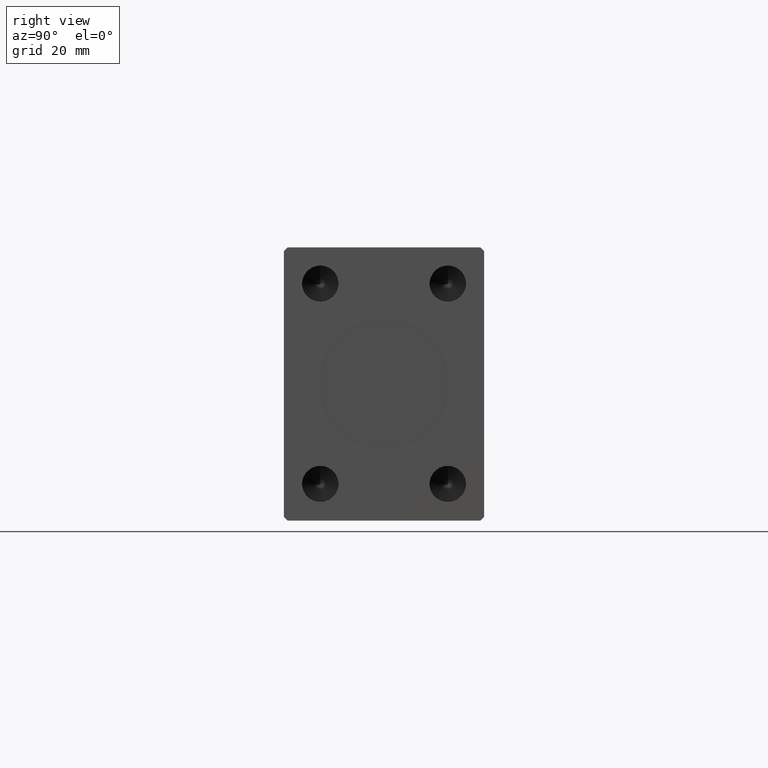
[diagram: clean part render]
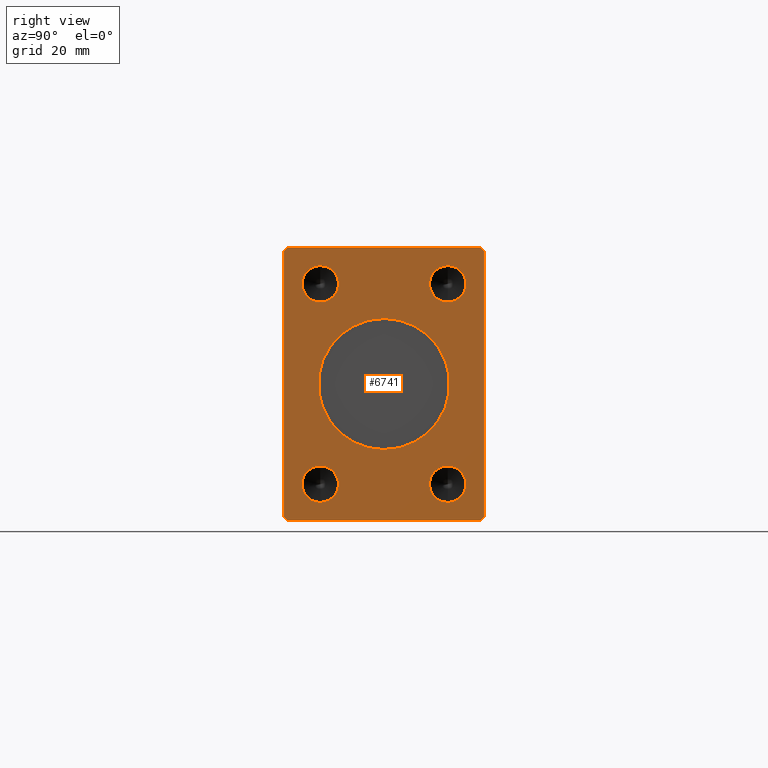
[diagram: same view with one face highlighted and labeled with its STEP entity id]
A machine part, right view. The second image highlights one B-rep face of the part: STEP entity #6741.
In plain terms, the highlighted planar face has unit normal (1, 0, 0).
Its self-contained STEP definition (entity closure, byte-faithful):
#1033 = AXIS2_PLACEMENT_3D ( 'NONE', #32681, #8116, #25100 ) ;
#1537 = DIRECTION ( 'NONE',  ( 0.000000000000000000, 0.000000000000000000, -1.000000000000000000 ) ) ;
#1643 = FACE_BOUND ( 'NONE', #20814, .T. ) ;
#1743 = ORIENTED_EDGE ( 'NONE', *, *, #38785, .T. ) ;
#1836 = EDGE_LOOP ( 'NONE', ( #19990, #15582, #31500, #5080, #5678, #44217, #10923, #1743 ) ) ;
#1871 = CARTESIAN_POINT ( 'NONE',  ( 165.0000000000000000, 17.50000000000000000, 27.50000000000000000 ) ) ;
#2207 = VECTOR ( 'NONE', #30377, 1000.000000000000114 ) ;
#2434 = DIRECTION ( 'NONE',  ( 0.000000000000000000, -0.7071067811865474617, 0.7071067811865474617 ) ) ;
#2991 = VERTEX_POINT ( 'NONE', #33613 ) ;
#3563 = DIRECTION ( 'NONE',  ( 1.000000000000000000, -0.000000000000000000, -0.000000000000000000 ) ) ;
#3581 = LINE ( 'NONE', #43995, #2207 ) ;
#3590 = DIRECTION ( 'NONE',  ( 0.000000000000000000, -0.7071067811865474617, -0.7071067811865474617 ) ) ;
#3970 = CARTESIAN_POINT ( 'NONE',  ( 165.0000000000000000, -27.50000000000000355, -36.49999999999998579 ) ) ;
#3992 = ORIENTED_EDGE ( 'NONE', *, *, #11944, .F. ) ;
#4317 = ORIENTED_EDGE ( 'NONE', *, *, #19358, .F. ) ;
#4342 = FACE_BOUND ( 'NONE', #18060, .T. ) ;
#5080 = ORIENTED_EDGE ( 'NONE', *, *, #24681, .T. ) ;
#5101 = DIRECTION ( 'NONE',  ( 0.000000000000000000, 0.000000000000000000, -1.000000000000000000 ) ) ;
#5403 = CARTESIAN_POINT ( 'NONE',  ( 165.0000000000000000, 2.204364238465235428E-15, 18.00000000000000000 ) ) ;
#5678 = ORIENTED_EDGE ( 'NONE', *, *, #10069, .T. ) ;
#5802 = VECTOR ( 'NONE', #40169, 1000.000000000000000 ) ;
#6167 = CIRCLE ( 'NONE', #31127, 18.00000000000000000 ) ;
#6516 = CARTESIAN_POINT ( 'NONE',  ( 165.0000000000000000, -17.50000000000000000, -22.50000000000000000 ) ) ;
#6741 = ADVANCED_FACE ( 'NONE', ( #4342, #42066, #1643, #7474, #41632, #24888 ), #15028, .T. ) ;
#6759 = EDGE_CURVE ( 'NONE', #18001, #41389, #6167, .T. ) ;
#6768 = CARTESIAN_POINT ( 'NONE',  ( 165.0000000000000000, 17.50000000000000000, -27.49999999999999289 ) ) ;
#6875 = LINE ( 'NONE', #3970, #17942 ) ;
#7040 = DIRECTION ( 'NONE',  ( 0.000000000000000000, 0.000000000000000000, -1.000000000000000000 ) ) ;
#7182 = VERTEX_POINT ( 'NONE', #33288 ) ;
#7377 = CARTESIAN_POINT ( 'NONE',  ( 165.0000000000000000, 0.000000000000000000, -18.00000000000000000 ) ) ;
#7474 = FACE_BOUND ( 'NONE', #37686, .T. ) ;
#7975 = VECTOR ( 'NONE', #2434, 1000.000000000000114 ) ;
#8116 = DIRECTION ( 'NONE',  ( 1.000000000000000000, 0.000000000000000000, 0.000000000000000000 ) ) ;
#8321 = VERTEX_POINT ( 'NONE', #10372 ) ;
#8435 = CARTESIAN_POINT ( 'NONE',  ( 165.0000000000000000, -17.50000000000000000, 27.50000000000000355 ) ) ;
#9451 = DIRECTION ( 'NONE',  ( 0.000000000000000000, 0.000000000000000000, -1.000000000000000000 ) ) ;
#9912 = VERTEX_POINT ( 'NONE', #13130 ) ;
#10069 = EDGE_CURVE ( 'NONE', #7182, #9912, #6875, .T. ) ;
#10372 = CARTESIAN_POINT ( 'NONE',  ( 165.0000000000000000, 27.50000000000000355, 36.50000000000000711 ) ) ;
#10690 = DIRECTION ( 'NONE',  ( 0.000000000000000000, 0.000000000000000000, -1.000000000000000000 ) ) ;
#10923 = ORIENTED_EDGE ( 'NONE', *, *, #37131, .T. ) ;
#11012 = CIRCLE ( 'NONE', #1033, 18.00000000000000000 ) ;
#11344 = VERTEX_POINT ( 'NONE', #43449 ) ;
#11438 = EDGE_CURVE ( 'NONE', #41389, #18001, #11012, .T. ) ;
#11678 = EDGE_CURVE ( 'NONE', #32372, #22761, #24578, .T. ) ;
#11944 = EDGE_CURVE ( 'NONE', #25502, #31421, #39550, .T. ) ;
#12360 = LINE ( 'NONE', #22433, #33803 ) ;
#12754 = AXIS2_PLACEMENT_3D ( 'NONE', #13889, #31309, #24390 ) ;
#13130 = CARTESIAN_POINT ( 'NONE',  ( 165.0000000000000000, -26.50000000000000355, -37.49999999999999289 ) ) ;
#13821 = CARTESIAN_POINT ( 'NONE',  ( 165.0000000000000000, 17.50000000000000000, -22.49999999999999645 ) ) ;
#13889 = CARTESIAN_POINT ( 'NONE',  ( 165.0000000000000000, -17.50000000000000000, -27.49999999999999645 ) ) ;
#14067 = LINE ( 'NONE', #24350, #27203 ) ;
#14140 = ORIENTED_EDGE ( 'NONE', *, *, #11678, .F. ) ;
#14598 = DIRECTION ( 'NONE',  ( 0.000000000000000000, 0.000000000000000000, -1.000000000000000000 ) ) ;
#15028 = PLANE ( 'NONE',  #21851 ) ;
#15107 = CIRCLE ( 'NONE', #34398, 4.999999999999997335 ) ;
#15129 = ORIENTED_EDGE ( 'NONE', *, *, #27069, .F. ) ;
#15190 = CARTESIAN_POINT ( 'NONE',  ( 165.0000000000000000, -26.50000000000000355, -37.49999999999999289 ) ) ;
#15418 = DIRECTION ( 'NONE',  ( 0.000000000000000000, 0.000000000000000000, -1.000000000000000000 ) ) ;
#15582 = ORIENTED_EDGE ( 'NONE', *, *, #38359, .T. ) ;
#15713 = DIRECTION ( 'NONE',  ( 0.000000000000000000, -4.752667057470704875E-17, 1.000000000000000000 ) ) ;
#17082 = CIRCLE ( 'NONE', #41308, 4.999999999999993783 ) ;
#17942 = VECTOR ( 'NONE', #20511, 1000.000000000000114 ) ;
#17962 = CARTESIAN_POINT ( 'NONE',  ( 165.0000000000000000, 0.000000000000000000, 0.000000000000000000 ) ) ;
#18001 = VERTEX_POINT ( 'NONE', #7377 ) ;
#18060 = EDGE_LOOP ( 'NONE', ( #20365, #18724 ) ) ;
#18136 = CARTESIAN_POINT ( 'NONE',  ( 165.0000000000000000, 17.50000000000000000, -27.49999999999999289 ) ) ;
#18524 = DIRECTION ( 'NONE',  ( 1.000000000000000000, -0.000000000000000000, -0.000000000000000000 ) ) ;
#18724 = ORIENTED_EDGE ( 'NONE', *, *, #11438, .F. ) ;
#19180 = CARTESIAN_POINT ( 'NONE',  ( 165.0000000000000000, 27.50000000000000355, 36.50000000000000711 ) ) ;
#19358 = EDGE_CURVE ( 'NONE', #31421, #25502, #38428, .T. ) ;
#19675 = EDGE_CURVE ( 'NONE', #32211, #22275, #22787, .T. ) ;
#19980 = VERTEX_POINT ( 'NONE', #31644 ) ;
#19990 = ORIENTED_EDGE ( 'NONE', *, *, #27045, .T. ) ;
#20365 = ORIENTED_EDGE ( 'NONE', *, *, #6759, .F. ) ;
#20511 = DIRECTION ( 'NONE',  ( 0.000000000000000000, 0.7071067811865451302, -0.7071067811865500152 ) ) ;
#20514 = VERTEX_POINT ( 'NONE', #33235 ) ;
#20625 = EDGE_CURVE ( 'NONE', #22761, #32372, #17082, .T. ) ;
#20814 = EDGE_LOOP ( 'NONE', ( #3992, #4317 ) ) ;
#21539 = DIRECTION ( 'NONE',  ( 0.000000000000000000, 0.000000000000000000, -1.000000000000000000 ) ) ;
#21851 = AXIS2_PLACEMENT_3D ( 'NONE', #17962, #25312, #14598 ) ;
#22076 = DIRECTION ( 'NONE',  ( 1.000000000000000000, -0.000000000000000000, -0.000000000000000000 ) ) ;
#22275 = VERTEX_POINT ( 'NONE', #29294 ) ;
#22433 = CARTESIAN_POINT ( 'NONE',  ( 165.0000000000000000, 27.50000000000000711, -36.49999999999999289 ) ) ;
#22486 = EDGE_LOOP ( 'NONE', ( #15129, #24802 ) ) ;
#22761 = VERTEX_POINT ( 'NONE', #13821 ) ;
#22787 = CIRCLE ( 'NONE', #28481, 4.999999999999997335 ) ;
#22882 = EDGE_LOOP ( 'NONE', ( #32077, #31113 ) ) ;
#22900 = VECTOR ( 'NONE', #28824, 1000.000000000000000 ) ;
#23797 = CARTESIAN_POINT ( 'NONE',  ( 165.0000000000000000, 26.50000000000000355, 37.50000000000000711 ) ) ;
#23811 = CARTESIAN_POINT ( 'NONE',  ( 165.0000000000000000, -17.50000000000000000, -27.49999999999999645 ) ) ;
#24350 = CARTESIAN_POINT ( 'NONE',  ( 165.0000000000000000, -26.50000000000000711, 37.50000000000000711 ) ) ;
#24390 = DIRECTION ( 'NONE',  ( 0.000000000000000000, 0.000000000000000000, -1.000000000000000000 ) ) ;
#24578 = CIRCLE ( 'NONE', #43820, 4.999999999999993783 ) ;
#24681 = EDGE_CURVE ( 'NONE', #11344, #7182, #42087, .T. ) ;
#24802 = ORIENTED_EDGE ( 'NONE', *, *, #38897, .F. ) ;
#24888 = FACE_OUTER_BOUND ( 'NONE', #1836, .T. ) ;
#25100 = DIRECTION ( 'NONE',  ( 0.000000000000000000, 0.000000000000000000, -1.000000000000000000 ) ) ;
#25118 = CARTESIAN_POINT ( 'NONE',  ( 165.0000000000000000, -27.50000000000000711, 36.50000000000000711 ) ) ;
#25174 = CARTESIAN_POINT ( 'NONE',  ( 165.0000000000000000, -17.50000000000000000, -32.49999999999999289 ) ) ;
#25223 = AXIS2_PLACEMENT_3D ( 'NONE', #1871, #27046, #39391 ) ;
#25312 = DIRECTION ( 'NONE',  ( 1.000000000000000000, 0.000000000000000000, 0.000000000000000000 ) ) ;
#25502 = VERTEX_POINT ( 'NONE', #25174 ) ;
#26005 = AXIS2_PLACEMENT_3D ( 'NONE', #23811, #40548, #7040 ) ;
#26322 = CARTESIAN_POINT ( 'NONE',  ( 165.0000000000000000, 26.50000000000000355, 37.50000000000000711 ) ) ;
#26543 = LINE ( 'NONE', #26322, #5802 ) ;
#26946 = VECTOR ( 'NONE', #43188, 1000.000000000000000 ) ;
#27045 = EDGE_CURVE ( 'NONE', #8321, #39393, #35712, .T. ) ;
#27046 = DIRECTION ( 'NONE',  ( 1.000000000000000000, -0.000000000000000000, -0.000000000000000000 ) ) ;
#27069 = EDGE_CURVE ( 'NONE', #19980, #41013, #15107, .T. ) ;
#27203 = VECTOR ( 'NONE', #3590, 1000.000000000000114 ) ;
#28481 = AXIS2_PLACEMENT_3D ( 'NONE', #8435, #22076, #5101 ) ;
#28786 = CARTESIAN_POINT ( 'NONE',  ( 165.0000000000000000, 17.50000000000000000, 27.50000000000000000 ) ) ;
#28824 = DIRECTION ( 'NONE',  ( 0.000000000000000000, 1.000000000000000000, 0.000000000000000000 ) ) ;
#29021 = CARTESIAN_POINT ( 'NONE',  ( 165.0000000000000000, -17.50000000000000000, 32.50000000000000000 ) ) ;
#29165 = CARTESIAN_POINT ( 'NONE',  ( 165.0000000000000000, 26.50000000000000711, -37.49999999999999289 ) ) ;
#29294 = CARTESIAN_POINT ( 'NONE',  ( 165.0000000000000000, -17.50000000000000000, 22.50000000000000711 ) ) ;
#30377 = DIRECTION ( 'NONE',  ( 0.000000000000000000, 0.7071067811865474617, 0.7071067811865474617 ) ) ;
#30443 = DIRECTION ( 'NONE',  ( 1.000000000000000000, -0.000000000000000000, -0.000000000000000000 ) ) ;
#30809 = ORIENTED_EDGE ( 'NONE', *, *, #20625, .F. ) ;
#30943 = CIRCLE ( 'NONE', #25223, 4.999999999999997335 ) ;
#31113 = ORIENTED_EDGE ( 'NONE', *, *, #19675, .F. ) ;
#31127 = AXIS2_PLACEMENT_3D ( 'NONE', #35154, #41411, #21539 ) ;
#31225 = CARTESIAN_POINT ( 'NONE',  ( 165.0000000000000000, 17.50000000000000000, 32.50000000000000000 ) ) ;
#31309 = DIRECTION ( 'NONE',  ( 1.000000000000000000, -0.000000000000000000, -0.000000000000000000 ) ) ;
#31421 = VERTEX_POINT ( 'NONE', #6516 ) ;
#31500 = ORIENTED_EDGE ( 'NONE', *, *, #38089, .T. ) ;
#31644 = CARTESIAN_POINT ( 'NONE',  ( 165.0000000000000000, 17.50000000000000000, 22.50000000000000355 ) ) ;
#32077 = ORIENTED_EDGE ( 'NONE', *, *, #32326, .F. ) ;
#32211 = VERTEX_POINT ( 'NONE', #29021 ) ;
#32326 = EDGE_CURVE ( 'NONE', #22275, #32211, #36317, .T. ) ;
#32372 = VERTEX_POINT ( 'NONE', #34814 ) ;
#32681 = CARTESIAN_POINT ( 'NONE',  ( 165.0000000000000000, 0.000000000000000000, 0.000000000000000000 ) ) ;
#33235 = CARTESIAN_POINT ( 'NONE',  ( 165.0000000000000000, 27.50000000000000711, -36.49999999999999289 ) ) ;
#33288 = CARTESIAN_POINT ( 'NONE',  ( 165.0000000000000000, -27.50000000000000355, -36.49999999999998579 ) ) ;
#33481 = AXIS2_PLACEMENT_3D ( 'NONE', #34153, #3563, #10690 ) ;
#33613 = CARTESIAN_POINT ( 'NONE',  ( 165.0000000000000000, -26.50000000000000711, 37.50000000000000711 ) ) ;
#33803 = VECTOR ( 'NONE', #15713, 1000.000000000000000 ) ;
#34153 = CARTESIAN_POINT ( 'NONE',  ( 165.0000000000000000, -17.50000000000000000, 27.50000000000000355 ) ) ;
#34398 = AXIS2_PLACEMENT_3D ( 'NONE', #28786, #18524, #1537 ) ;
#34814 = CARTESIAN_POINT ( 'NONE',  ( 165.0000000000000000, 17.50000000000000000, -32.49999999999998579 ) ) ;
#35154 = CARTESIAN_POINT ( 'NONE',  ( 165.0000000000000000, 0.000000000000000000, 0.000000000000000000 ) ) ;
#35712 = LINE ( 'NONE', #19180, #7975 ) ;
#35962 = VERTEX_POINT ( 'NONE', #29165 ) ;
#36317 = CIRCLE ( 'NONE', #33481, 4.999999999999997335 ) ;
#36985 = EDGE_CURVE ( 'NONE', #9912, #35962, #38874, .T. ) ;
#37131 = EDGE_CURVE ( 'NONE', #35962, #20514, #3581, .T. ) ;
#37686 = EDGE_LOOP ( 'NONE', ( #14140, #30809 ) ) ;
#38089 = EDGE_CURVE ( 'NONE', #2991, #11344, #14067, .T. ) ;
#38359 = EDGE_CURVE ( 'NONE', #39393, #2991, #26543, .T. ) ;
#38428 = CIRCLE ( 'NONE', #12754, 4.999999999999997335 ) ;
#38785 = EDGE_CURVE ( 'NONE', #20514, #8321, #12360, .T. ) ;
#38874 = LINE ( 'NONE', #15190, #22900 ) ;
#38897 = EDGE_CURVE ( 'NONE', #41013, #19980, #30943, .T. ) ;
#39391 = DIRECTION ( 'NONE',  ( 0.000000000000000000, 0.000000000000000000, -1.000000000000000000 ) ) ;
#39393 = VERTEX_POINT ( 'NONE', #23797 ) ;
#39550 = CIRCLE ( 'NONE', #26005, 4.999999999999997335 ) ;
#40164 = DIRECTION ( 'NONE',  ( 1.000000000000000000, -0.000000000000000000, -0.000000000000000000 ) ) ;
#40169 = DIRECTION ( 'NONE',  ( 0.000000000000000000, -1.000000000000000000, 0.000000000000000000 ) ) ;
#40548 = DIRECTION ( 'NONE',  ( 1.000000000000000000, -0.000000000000000000, -0.000000000000000000 ) ) ;
#41013 = VERTEX_POINT ( 'NONE', #31225 ) ;
#41308 = AXIS2_PLACEMENT_3D ( 'NONE', #6768, #30443, #9451 ) ;
#41389 = VERTEX_POINT ( 'NONE', #5403 ) ;
#41411 = DIRECTION ( 'NONE',  ( 1.000000000000000000, 0.000000000000000000, 0.000000000000000000 ) ) ;
#41632 = FACE_BOUND ( 'NONE', #22882, .T. ) ;
#42066 = FACE_BOUND ( 'NONE', #22486, .T. ) ;
#42087 = LINE ( 'NONE', #25118, #26946 ) ;
#43188 = DIRECTION ( 'NONE',  ( 0.000000000000000000, 4.752667057470705491E-17, -1.000000000000000000 ) ) ;
#43449 = CARTESIAN_POINT ( 'NONE',  ( 165.0000000000000000, -27.50000000000000711, 36.50000000000000711 ) ) ;
#43820 = AXIS2_PLACEMENT_3D ( 'NONE', #18136, #40164, #15418 ) ;
#43995 = CARTESIAN_POINT ( 'NONE',  ( 165.0000000000000000, 26.50000000000000711, -37.49999999999999289 ) ) ;
#44217 = ORIENTED_EDGE ( 'NONE', *, *, #36985, .T. ) ;